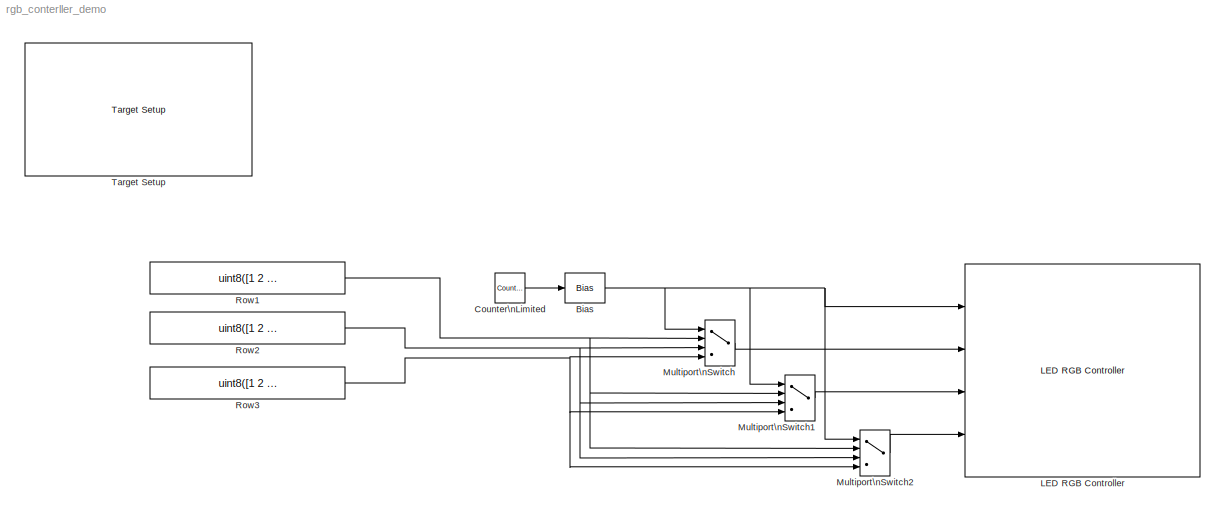
MODEL rgb_conterller_demo
KIND model
CONFIG PreLoadFcn = waijung.modelPreload; % Required for working with Waijung Blockset. Do not remove.
BLOCK [Bias] Bias
  Bias = 1
  SaturateOnIntegerOverflow = off
BLOCK [Reference] Counter\nLimited  REF=simulink/Sources/Counter\nLimited
  FunctionWithSeparateData = off
  Ports = [0, 1]
  RTWMemSecDataConstants = Inherit from model
  RTWMemSecDataInternal = Inherit from model
  RTWMemSecDataParameters = Inherit from model
  RTWMemSecFuncExecute = Inherit from model
  RTWMemSecFuncInitTerm = Inherit from model
  ShowPortLabels = FromPortIcon
  SourceBlock = simulink/Sources/Counter\nLimited
  SourceType = Counter Limited
  SystemSampleTime = -1
  tsamp = -1
  uplimit = 2
BLOCK [Reference] LED RGB Controller  REF=nrf5_rgb_conterller_lib/LED RGB Controller
  Ports = [4]
  SourceBlock = nrf5_rgb_conterller_lib/LED RGB Controller
  SourceType = nrf5_rgb_controller
  blockid = LEDRGBController
  bluepin = 7
  cinputportlabel = In1,In2
  clock = 500kHz
  clockpin = 8
  compat = 0
  conf = output
  coutputportlabel = Out1,Out2
  enablecustomportlabel = off
  greenpin = 12
  inputportlabel = {'Row','R','G','B'}
  inputporttype = [3 3 3 3]
  inputportwidth = [1 36 36 36]
  latchpin = 5
  optionstring = [\"8\",\"11\",\"12\",\"7\",\"5\",\"10\",\"9\",\"3\"]
  outputportlabel = {}
  outputporttype = []
  outputportwidth = []
  panelcount = 3
  portpinstr = 0
  redpin = 11
  rowselecta = 10
  rowselectb = 9
  sampletime = -1
BLOCK [MultiPortSwitch] Multiport\nSwitch
  InputSameDT = off
  OutDataType = fixdt(1, 16)
  OutScaling = 2^0
  Ports = [4, 1]
  SaturateOnIntegerOverflow = off
BLOCK [MultiPortSwitch] Multiport\nSwitch1
  InputSameDT = off
  OutDataType = fixdt(1, 16)
  OutScaling = 2^0
  Ports = [4, 1]
  SaturateOnIntegerOverflow = off
BLOCK [MultiPortSwitch] Multiport\nSwitch2
  InputSameDT = off
  OutDataType = fixdt(1, 16)
  OutScaling = 2^0
  Ports = [4, 1]
  SaturateOnIntegerOverflow = off
BLOCK [Constant] Row1
  OutDataType = fixdt(1, 16)
  OutScaling = 2^0
  Value = uint8([1 2 3 4 5 6 7 8 9 10 11 12 1 2 3 4 5 6 7 8 9 10 11 12 1 2 3 4 5 6 7 8 9 10 11 12])
BLOCK [Constant] Row2
  OutDataType = fixdt(1, 16)
  OutScaling = 2^0
  Value = uint8([1 2 3 4 5 6 7 8 9 10 11 12 1 2 3 4 5 6 7 8 9 10 11 12 1 2 3 4 5 6 7 8 9 10 11 12])
BLOCK [Constant] Row3
  OutDataType = fixdt(1, 16)
  OutScaling = 2^0
  Value = uint8([1 2 3 4 5 6 7 8 9 10 11 12 1 2 3 4 5 6 7 8 9 10 11 12 1 2 3 4 5 6 7 8 9 10 11 12])
BLOCK [Reference] Target Setup  REF=nrf5_device_config_lib/Target Setup
  Ports = []
  Priority = 100
  SourceBlock = nrf5_device_config_lib/Target Setup
  SourceType = nrf5_target_setup
  assemblercontrolstr = -O3 -g3 -mcpu=cortex-m4 -mthumb -mabi=aapcs -mfloat-abi=hard -mfpu=fpv4-sp-d16
  ble_secure_dfu = off
  ble_secure_dfu_public_key = '123bd49bffb387f1de3dc8dc1fc8fcce952739d331fafeb7dd16837154ace7994a0a05af319f68e2a07478477b8db746643d6dd7f5f191193738984ffcd2b963'
  blockid = TargetSetup
  clockconfig = None
  compiler = GNU ARM
  compilercontrolstr = -O3 -g3 -mcpu=cortex-m4 -mthumb -mabi=aapcs -Wall -mfloat-abi=hard -mfpu=fpv4-sp-d16 -ffunction-sections -fdata-sections -fno-strict-aliasing -fno-builtin -fshort-enums
  editctrlstr = on
  enableautocompiledownload = on
  execprofile = None
  family = nrf52
  flashlength = 256k
  flashorigin = 0x26000
  fullchiperase = off
  global_define = CONFIG_GPIO_AS_PINRESET,FLOAT_ABI_HARD,NRF52,NRF52832_XXAA,NRF52_PAN_74,S132,SOFTDEVICE_PRESENT,SWI_DISABLE0,CONFIG_NFCT_PINS_AS_GPIOS
  hclk = 168000000
  heapsize = 0x00
  hseval = 8000000
  lastprofileruart = 3
  linkercontrolstr = -O3 -g3 -mthumb -mabi=aapcs -mcpu=cortex-m4 -mfloat-abi=hard -mfpu=fpv4-sp-d16 -Wl,--gc-sections --specs=nano.specs
  lowpower = off
  manualsetsampletime = on
  mcu = nRF52832QFAA (S132-v6)
  optionstring = [\"s132\",\"off\"]
  previous_compiler = GNU ARM
  profilerbaud = 500000
  profilerinitstr = 0.01,168000000,1680000,500000,0
  profilertxpin = D8
  profileruart = 3
  programmerinterface = aMG USB Connect
  ramlength = 51k
  ramorigin = 0x200032C8
  runafterdownload = on
  sampletime = 0.1
  showmemoryconfiguration = on
  softdevice = S132
  stacksize = 0xC00
  system_nrf5_c_path = <path>
  systickreloadvalue = 10
  useextram = off
NET Bias:1 -> LED RGB Controller:1, Multiport\nSwitch1:1, Multiport\nSwitch2:1, Multiport\nSwitch:1
LINE Counter\nLimited:1 -> Bias:1
LINE Multiport\nSwitch1:1 -> LED RGB Controller:3
LINE Multiport\nSwitch2:1 -> LED RGB Controller:4
LINE Multiport\nSwitch:1 -> LED RGB Controller:2
NET Row1:1 -> Multiport\nSwitch1:2, Multiport\nSwitch2:2, Multiport\nSwitch:2
NET Row2:1 -> Multiport\nSwitch1:3, Multiport\nSwitch2:3, Multiport\nSwitch:3
NET Row3:1 -> Multiport\nSwitch1:4, Multiport\nSwitch2:4, Multiport\nSwitch:4
note: NET lines group one-source signal fan-out (src -> all destinations, sorted); 1:1 wires keep LINE
note: 1 file-system path scrubbed to <path> (not preserved elsewhere — flat text is the only slx artifact)
